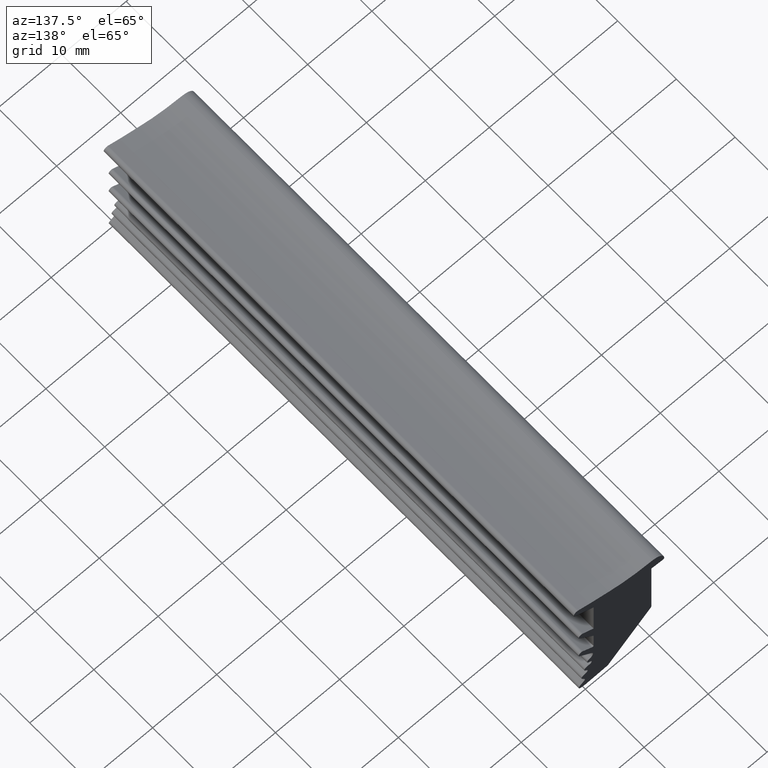
[diagram: clean part render]
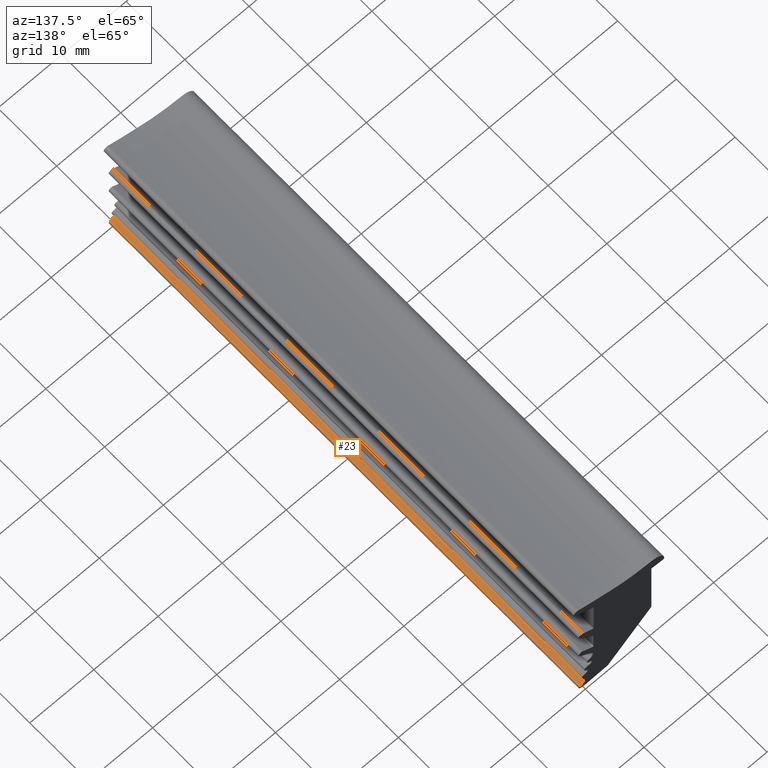
[diagram: same view with one face highlighted and labeled with its STEP entity id]
A machine part, auxiliary view. The second image highlights one B-rep face of the part: STEP entity #23.
In plain terms, the highlighted planar face has unit normal (-0.5155, 0, -0.8569).
Its self-contained STEP definition (entity closure, byte-faithful):
#23 = ADVANCED_FACE ( 'NONE', ( #60 ), #1127, .F. ) ;
#60 = FACE_OUTER_BOUND ( 'NONE', #1810, .T. ) ;
#140 = VECTOR ( 'NONE', #1508, 1000.000000000000100 ) ;
#144 = LINE ( 'NONE', #1513, #140 ) ;
#228 = VECTOR ( 'NONE', #866, 1000.000000000000100 ) ;
#232 = LINE ( 'NONE', #872, #228 ) ;
#495 = AXIS2_PLACEMENT_3D ( 'NONE', #1183, #1110, #1109 ) ;
#524 = EDGE_CURVE ( 'NONE', #1237, #1171, #232, .T. ) ;
#580 = EDGE_CURVE ( 'NONE', #1204, #1346, #144, .T. ) ;
#625 = EDGE_CURVE ( 'NONE', #1171, #1204, #2022, .T. ) ;
#632 = EDGE_CURVE ( 'NONE', #1346, #1237, #2006, .T. ) ;
#645 = ORIENTED_EDGE ( 'NONE', *, *, #625, .F. ) ;
#650 = ORIENTED_EDGE ( 'NONE', *, *, #632, .F. ) ;
#659 = ORIENTED_EDGE ( 'NONE', *, *, #580, .F. ) ;
#702 = ORIENTED_EDGE ( 'NONE', *, *, #524, .F. ) ;
#866 = DIRECTION ( 'NONE',  ( 0.8568951763817086500, -0.0000000000000000000, -0.5154906950603088700 ) ) ;
#872 = CARTESIAN_POINT ( 'NONE',  ( 0.2031874133048499900, 80.00000000000000000, 1.230195506835030100 ) ) ;
#1109 = DIRECTION ( 'NONE',  ( -0.8568951763817086500, 0.0000000000000000000, 0.5154906950603088700 ) ) ;
#1110 = DIRECTION ( 'NONE',  ( -0.5154906950603088700, 0.0000000000000000000, -0.8568951763817086500 ) ) ;
#1127 = PLANE ( 'NONE',  #495 ) ;
#1171 = VERTEX_POINT ( 'NONE', #1652 ) ;
#1183 = CARTESIAN_POINT ( 'NONE',  ( 0.2031874133048499900, 80.00000000000000000, 1.230195506835030100 ) ) ;
#1204 = VERTEX_POINT ( 'NONE', #1509 ) ;
#1237 = VERTEX_POINT ( 'NONE', #1740 ) ;
#1346 = VERTEX_POINT ( 'NONE', #1717 ) ;
#1469 = CARTESIAN_POINT ( 'NONE',  ( 0.8264968148928411000, 80.00000000000000000, 0.8552252589933162500 ) ) ;
#1470 = DIRECTION ( 'NONE',  ( -0.0000000000000000000, -1.000000000000000000, -0.0000000000000000000 ) ) ;
#1484 = CARTESIAN_POINT ( 'NONE',  ( 0.2031874133048499900, 80.00000000000000000, 1.230195506835030100 ) ) ;
#1487 = DIRECTION ( 'NONE',  ( 0.0000000000000000000, 1.000000000000000000, 0.0000000000000000000 ) ) ;
#1508 = DIRECTION ( 'NONE',  ( -0.8568951763817086500, 0.0000000000000000000, 0.5154906950603088700 ) ) ;
#1509 = CARTESIAN_POINT ( 'NONE',  ( 0.8264968148927327500, 0.0000000000000000000, 0.8552252589933812000 ) ) ;
#1513 = CARTESIAN_POINT ( 'NONE',  ( 0.2031874133048499900, 0.0000000000000000000, 1.230195506835030100 ) ) ;
#1652 = CARTESIAN_POINT ( 'NONE',  ( 0.8264968148927327500, 80.00000000000000000, 0.8552252589933812000 ) ) ;
#1717 = CARTESIAN_POINT ( 'NONE',  ( 0.2031874133044781800, 0.0000000000000000000, 1.230195506835253700 ) ) ;
#1740 = CARTESIAN_POINT ( 'NONE',  ( 0.2031874133044781800, 80.00000000000000000, 1.230195506835253700 ) ) ;
#1810 = EDGE_LOOP ( 'NONE', ( #645, #702, #650, #659 ) ) ;
#2005 = VECTOR ( 'NONE', #1487, 1000.000000000000000 ) ;
#2006 = LINE ( 'NONE', #1484, #2005 ) ;
#2021 = VECTOR ( 'NONE', #1470, 1000.000000000000000 ) ;
#2022 = LINE ( 'NONE', #1469, #2021 ) ;